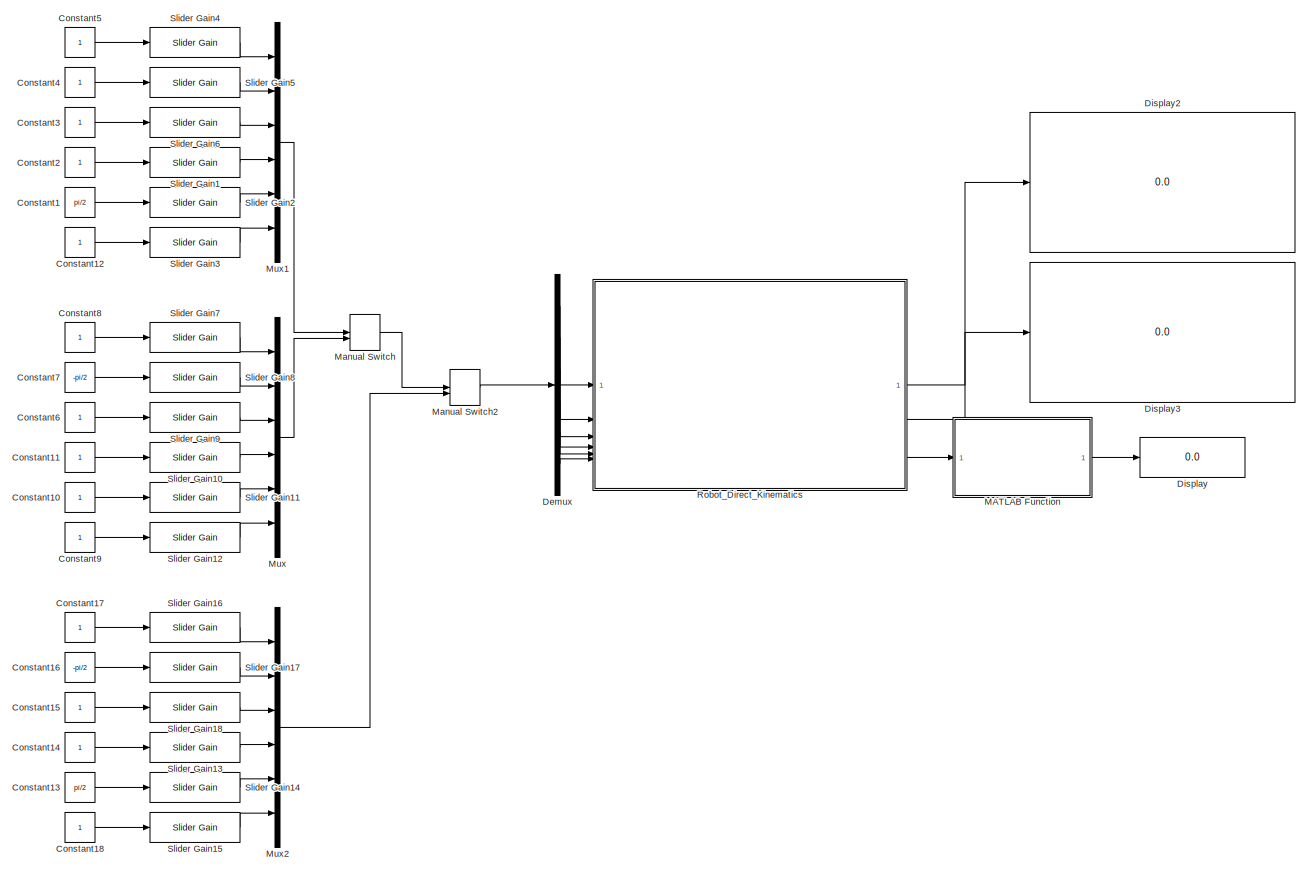
[diagram: root canvas - part 1/1, most of the canvas]
MODEL slx_ba2f26933fa1
KIND model
CONFIG AbsTol = auto
CONFIG EnableMultiTasking = on
CONFIG FixedStep = auto
CONFIG MaxStep = 1e-6
CONFIG MinStep = auto
CONFIG RelTol = 1e-3
CONFIG SampleTimeConstraint = Unconstrained
CONFIG SolverName = VariableStepAuto
CONFIG StartTime = 0.0
CONFIG StopTime = inf
BLOCK [Constant] Constant1
  Value = pi/2
BLOCK [Constant] Constant10
BLOCK [Constant] Constant11
BLOCK [Constant] Constant12
BLOCK [Constant] Constant13
  Value = pi/2
BLOCK [Constant] Constant14
BLOCK [Constant] Constant15
BLOCK [Constant] Constant16
  Value = -pi/2
BLOCK [Constant] Constant17
BLOCK [Constant] Constant18
BLOCK [Constant] Constant2
BLOCK [Constant] Constant3
BLOCK [Constant] Constant4
BLOCK [Constant] Constant5
BLOCK [Constant] Constant6
BLOCK [Constant] Constant7
  Value = -pi/2
BLOCK [Constant] Constant8
BLOCK [Constant] Constant9
BLOCK [Demux] Demux
  Outputs = 6
BLOCK [Display] Display
  Decimation = 1
BLOCK [Display] Display2
  Decimation = 1
BLOCK [Display] Display3
  Decimation = 1
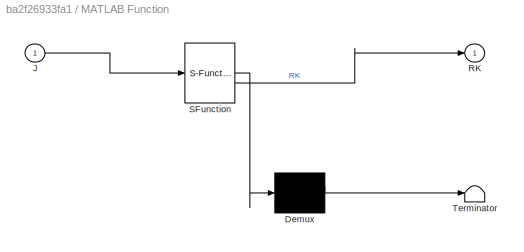
BLOCK [SubSystem] MATLAB Function
  ErrorFcn = Stateflow.Translate.translate
  PermitHierarchicalResolution = ExplicitOnly
  SFBlockType = MATLAB Function
  TreatAsAtomicUnit = on
BLOCK [Demux] MATLAB Function/ Demux 
  Outputs = 1
BLOCK [S-Function] MATLAB Function/ SFunction 
  EnableBusSupport = on
  FunctionName = sf_sfun
  PortCounts = [1 2]
  SFcnIsStateOwnerBlock = off
  SFunctionDeploymentMode = off
  Tag = Stateflow S-Function 1
BLOCK [Terminator] MATLAB Function/ Terminator 
BLOCK [Inport] MATLAB Function/J
BLOCK [Outport] MATLAB Function/RK
BLOCK [ManualSwitch] Manual Switch
BLOCK [ManualSwitch] Manual Switch2
  CurrentSetting = 0
BLOCK [Mux] Mux
  DisplayOption = bar
  Inputs = 6
BLOCK [Mux] Mux1
  DisplayOption = bar
  Inputs = 6
BLOCK [Mux] Mux2
  DisplayOption = bar
  Inputs = 6
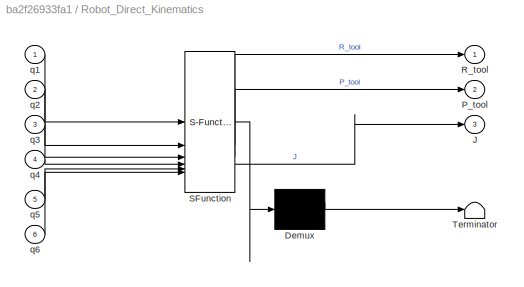
BLOCK [SubSystem] Robot_Direct_Kinematics
  ErrorFcn = Stateflow.Translate.translate
  PermitHierarchicalResolution = ExplicitOnly
  SFBlockType = MATLAB Function
  TreatAsAtomicUnit = on
BLOCK [Demux] Robot_Direct_Kinematics/ Demux 
  Outputs = 1
BLOCK [S-Function] Robot_Direct_Kinematics/ SFunction 
  EnableBusSupport = on
  FunctionName = sf_sfun
  PortCounts = [6 4]
  SFcnIsStateOwnerBlock = off
  SFunctionDeploymentMode = off
  Tag = Stateflow S-Function 2
BLOCK [Terminator] Robot_Direct_Kinematics/ Terminator 
BLOCK [Outport] Robot_Direct_Kinematics/J
  Port = 3
BLOCK [Outport] Robot_Direct_Kinematics/P_tool
  Port = 2
BLOCK [Outport] Robot_Direct_Kinematics/R_tool
BLOCK [Inport] Robot_Direct_Kinematics/q1
BLOCK [Inport] Robot_Direct_Kinematics/q2
  Port = 2
BLOCK [Inport] Robot_Direct_Kinematics/q3
  Port = 3
BLOCK [Inport] Robot_Direct_Kinematics/q4
  Port = 4
BLOCK [Inport] Robot_Direct_Kinematics/q5
  Port = 5
BLOCK [Inport] Robot_Direct_Kinematics/q6
  Port = 6
BLOCK [Reference] Slider Gain1  REF=simulink/Math
Operations/Slider
Gain
  SourceBlock = simulink/Math\nOperations/Slider\nGain
  SourceType = Slider Gain
BLOCK [Reference] Slider Gain10  REF=simulink/Math
Operations/Slider
Gain
  SourceBlock = simulink/Math\nOperations/Slider\nGain
  SourceType = Slider Gain
BLOCK [Reference] Slider Gain11  REF=simulink/Math
Operations/Slider
Gain
  SourceBlock = simulink/Math\nOperations/Slider\nGain
  SourceType = Slider Gain
BLOCK [Reference] Slider Gain12  REF=simulink/Math
Operations/Slider
Gain
  SourceBlock = simulink/Math\nOperations/Slider\nGain
  SourceType = Slider Gain
BLOCK [Reference] Slider Gain13  REF=simulink/Math
Operations/Slider
Gain
  SourceBlock = simulink/Math\nOperations/Slider\nGain
  SourceType = Slider Gain
BLOCK [Reference] Slider Gain14  REF=simulink/Math
Operations/Slider
Gain
  SourceBlock = simulink/Math\nOperations/Slider\nGain
  SourceType = Slider Gain
BLOCK [Reference] Slider Gain15  REF=simulink/Math
Operations/Slider
Gain
  SourceBlock = simulink/Math\nOperations/Slider\nGain
  SourceType = Slider Gain
BLOCK [Reference] Slider Gain16  REF=simulink/Math
Operations/Slider
Gain
  SourceBlock = simulink/Math\nOperations/Slider\nGain
  SourceType = Slider Gain
BLOCK [Reference] Slider Gain17  REF=simulink/Math
Operations/Slider
Gain
  SourceBlock = simulink/Math\nOperations/Slider\nGain
  SourceType = Slider Gain
BLOCK [Reference] Slider Gain18  REF=simulink/Math
Operations/Slider
Gain
  SourceBlock = simulink/Math\nOperations/Slider\nGain
  SourceType = Slider Gain
BLOCK [Reference] Slider Gain2  REF=simulink/Math
Operations/Slider
Gain
  SourceBlock = simulink/Math\nOperations/Slider\nGain
  SourceType = Slider Gain
BLOCK [Reference] Slider Gain3  REF=simulink/Math
Operations/Slider
Gain
  SourceBlock = simulink/Math\nOperations/Slider\nGain
  SourceType = Slider Gain
BLOCK [Reference] Slider Gain4  REF=simulink/Math
Operations/Slider
Gain
  SourceBlock = simulink/Math\nOperations/Slider\nGain
  SourceType = Slider Gain
BLOCK [Reference] Slider Gain5  REF=simulink/Math
Operations/Slider
Gain
  SourceBlock = simulink/Math\nOperations/Slider\nGain
  SourceType = Slider Gain
BLOCK [Reference] Slider Gain6  REF=simulink/Math
Operations/Slider
Gain
  SourceBlock = simulink/Math\nOperations/Slider\nGain
  SourceType = Slider Gain
BLOCK [Reference] Slider Gain7  REF=simulink/Math
Operations/Slider
Gain
  SourceBlock = simulink/Math\nOperations/Slider\nGain
  SourceType = Slider Gain
BLOCK [Reference] Slider Gain8  REF=simulink/Math
Operations/Slider
Gain
  SourceBlock = simulink/Math\nOperations/Slider\nGain
  SourceType = Slider Gain
BLOCK [Reference] Slider Gain9  REF=simulink/Math
Operations/Slider
Gain
  SourceBlock = simulink/Math\nOperations/Slider\nGain
  SourceType = Slider Gain
LINE Constant10:1 -> Slider Gain11:1
LINE Constant11:1 -> Slider Gain10:1
LINE Constant12:1 -> Slider Gain3:1
LINE Constant13:1 -> Slider Gain14:1
LINE Constant14:1 -> Slider Gain13:1
LINE Constant15:1 -> Slider Gain18:1
LINE Constant16:1 -> Slider Gain17:1
LINE Constant17:1 -> Slider Gain16:1
LINE Constant18:1 -> Slider Gain15:1
LINE Constant1:1 -> Slider Gain2:1
LINE Constant2:1 -> Slider Gain1:1
LINE Constant3:1 -> Slider Gain6:1
LINE Constant4:1 -> Slider Gain5:1
LINE Constant5:1 -> Slider Gain4:1
LINE Constant6:1 -> Slider Gain9:1
LINE Constant7:1 -> Slider Gain8:1
LINE Constant8:1 -> Slider Gain7:1
LINE Constant9:1 -> Slider Gain12:1
LINE Demux:1 -> Robot_Direct_Kinematics:1
LINE Demux:2 -> Robot_Direct_Kinematics:2
LINE Demux:3 -> Robot_Direct_Kinematics:3
LINE Demux:4 -> Robot_Direct_Kinematics:4
LINE Demux:5 -> Robot_Direct_Kinematics:5
LINE Demux:6 -> Robot_Direct_Kinematics:6
LINE MATLAB Function:1 -> Display:1
LINE Manual Switch2:1 -> Demux:1
LINE Manual Switch:1 -> Manual Switch2:1
LINE Mux1:1 -> Manual Switch:1
LINE Mux2:1 -> Manual Switch2:2
LINE Mux:1 -> Manual Switch:2
LINE Robot_Direct_Kinematics:1 -> Display2:1
LINE Robot_Direct_Kinematics:2 -> Display3:1
LINE Robot_Direct_Kinematics:3 -> MATLAB Function:1
LINE Slider Gain10:1 -> Mux:4
LINE Slider Gain11:1 -> Mux:5
LINE Slider Gain12:1 -> Mux:6
LINE Slider Gain13:1 -> Mux2:4
LINE Slider Gain14:1 -> Mux2:5
LINE Slider Gain15:1 -> Mux2:6
LINE Slider Gain16:1 -> Mux2:1
LINE Slider Gain17:1 -> Mux2:2
LINE Slider Gain18:1 -> Mux2:3
LINE Slider Gain1:1 -> Mux1:4
LINE Slider Gain2:1 -> Mux1:5
LINE Slider Gain3:1 -> Mux1:6
LINE Slider Gain4:1 -> Mux1:1
LINE Slider Gain5:1 -> Mux1:2
LINE Slider Gain6:1 -> Mux1:3
LINE Slider Gain7:1 -> Mux:1
LINE Slider Gain8:1 -> Mux:2
LINE Slider Gain9:1 -> Mux:3
CHART MATLAB Function states=1 transitions=1
  STATE_LABEL 'eML_blk_kernel()'
  STATE_LABEL 'SCRIPT:\nfunction RK = RankCalc(J)\n\nRK = rank(J);\n'
CHART Robot_Direct_Kinematics states=1 transitions=1
  STATE_LABEL 'eML_blk_kernel()'
  STATE_LABEL 'SCRIPT:\nfunction [R_tool,P_tool,J] = Robot_Direct_Kinematics(q1,q2,q3,q4,q5,q6)\n%#codegen\n\n%    This function was generated by the Symbolic Math Toolbox version 24.2.\n%    24-May-2025 22:37:09\n\n% q1 = complex(q1);  % if required to enforce complex operations\n% q2 = complex(q2);  % if required to enforce complex operations\n% q3 = complex(q3);  % if required to enforce complex operations\n% q4 = comp...<+3608ch>'
CHART  states=0 transitions=0
CHART  states=0 transitions=0
